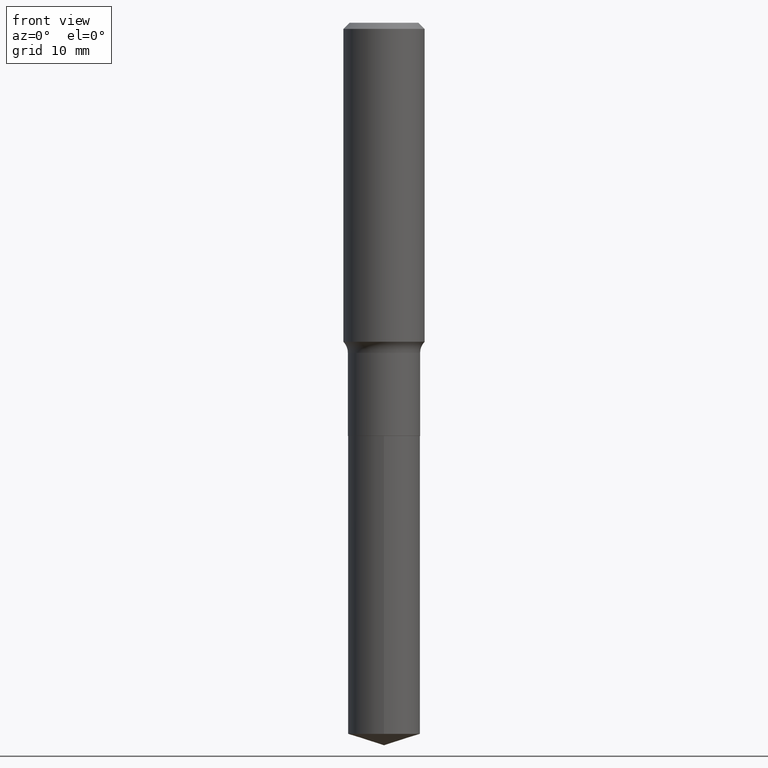
[diagram: clean part render]
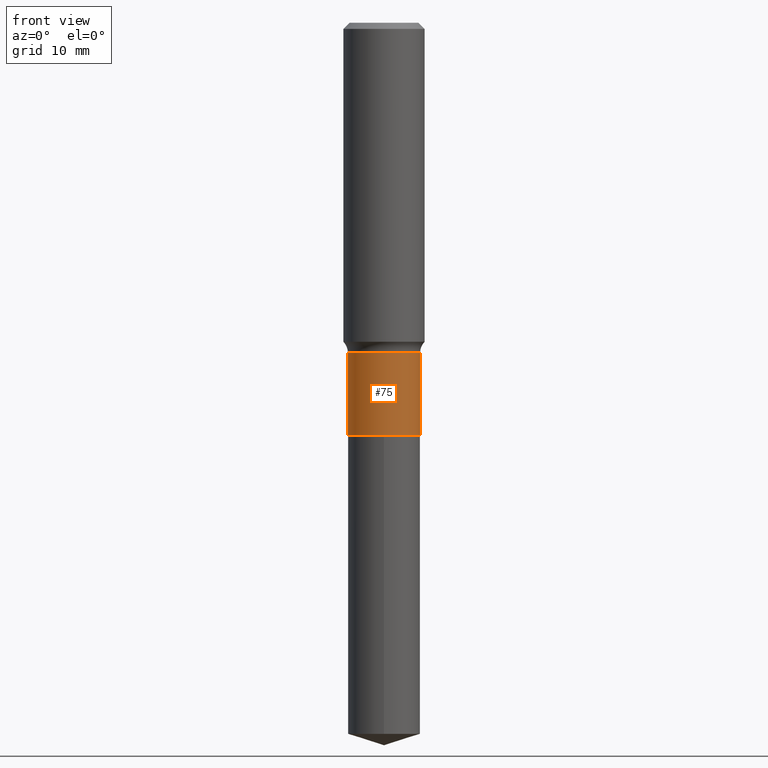
[diagram: same view with one face highlighted and labeled with its STEP entity id]
A machine part, front view. The second image highlights one B-rep face of the part: STEP entity #75.
In plain terms, the highlighted cylindrical surface (edge-blend (fillet) strip) has radius 4.4501 mm, axis along (-0, 0, 1).
Its self-contained STEP definition (entity closure, byte-faithful):
#8 = EDGE_CURVE ( 'NONE', #321, #196, #37, .T. ) ;
#15 = ORIENTED_EDGE ( 'NONE', *, *, #357, .F. ) ;
#33 = DIRECTION ( 'NONE',  ( -2.445468806185136597E-29, 3.491481338843145583E-15, 1.000000000000000000 ) ) ;
#37 = LINE ( 'NONE', #385, #266 ) ;
#50 = ORIENTED_EDGE ( 'NONE', *, *, #8, .T. ) ;
#51 = VERTEX_POINT ( 'NONE', #237 ) ;
#75 = ADVANCED_FACE ( 'NONE', ( #424 ), #156, .T. ) ;
#89 = ORIENTED_EDGE ( 'NONE', *, *, #314, .F. ) ;
#91 = DIRECTION ( 'NONE',  ( 1.000000000000000000, -6.982962677686266711E-15, 4.876176775795935793E-29 ) ) ;
#95 = CARTESIAN_POINT ( 'NONE',  ( 0.1751999999999999946, -8.218248775368990478E-15, -2.003399999999999626 ) ) ;
#104 = CIRCLE ( 'NONE', #386, 0.1751999999999999391 ) ;
#113 = CARTESIAN_POINT ( 'NONE',  ( 3.914951011821784364E-29, -5.589512475353991008E-15, -1.600899999999999768 ) ) ;
#118 = VERTEX_POINT ( 'NONE', #241 ) ;
#124 = AXIS2_PLACEMENT_3D ( 'NONE', #462, #475, #91 ) ;
#130 = CARTESIAN_POINT ( 'NONE',  ( 4.899252206311301777E-29, -6.994833714238356601E-15, -2.003399999999999626 ) ) ;
#156 = CYLINDRICAL_SURFACE ( 'NONE', #124, 0.1751999999999999391 ) ;
#163 = CARTESIAN_POINT ( 'NONE',  ( -0.1751999999999999391, 1.244870873051695093E-15, -8.617974278126592972E-30 ) ) ;
#196 = VERTEX_POINT ( 'NONE', #401 ) ;
#213 = LINE ( 'NONE', #163, #488 ) ;
#216 = EDGE_CURVE ( 'NONE', #118, #321, #463, .T. ) ;
#234 = DIRECTION ( 'NONE',  ( -2.445468806185136877E-29, 3.491481338843145188E-15, 1.000000000000000000 ) ) ;
#237 = CARTESIAN_POINT ( 'NONE',  ( -0.1751999999999999391, -5.047302221744479303E-15, -1.600899999999999768 ) ) ;
#241 = CARTESIAN_POINT ( 'NONE',  ( -0.1751999999999999946, -5.047302221744479303E-15, -2.003399999999999626 ) ) ;
#260 = AXIS2_PLACEMENT_3D ( 'NONE', #130, #333, #286 ) ;
#266 = VECTOR ( 'NONE', #234, 39.37007874015748143 ) ;
#269 = EDGE_LOOP ( 'NONE', ( #89, #322, #50, #15 ) ) ;
#286 = DIRECTION ( 'NONE',  ( 1.000000000000000000, -6.982962677686269077E-15, 0.000000000000000000 ) ) ;
#314 = EDGE_CURVE ( 'NONE', #118, #51, #213, .T. ) ;
#321 = VERTEX_POINT ( 'NONE', #95 ) ;
#322 = ORIENTED_EDGE ( 'NONE', *, *, #216, .T. ) ;
#326 = DIRECTION ( 'NONE',  ( -2.445468806185136877E-29, 3.491481338843145188E-15, 1.000000000000000000 ) ) ;
#333 = DIRECTION ( 'NONE',  ( -2.445468806185136597E-29, 3.491481338843145583E-15, 1.000000000000000000 ) ) ;
#357 = EDGE_CURVE ( 'NONE', #51, #196, #104, .T. ) ;
#377 = DIRECTION ( 'NONE',  ( 1.000000000000000000, -6.982962677686265133E-15, 0.000000000000000000 ) ) ;
#385 = CARTESIAN_POINT ( 'NONE',  ( 0.1751999999999999391, -1.223415061130633483E-15, 8.543061711194476516E-30 ) ) ;
#386 = AXIS2_PLACEMENT_3D ( 'NONE', #113, #33, #377 ) ;
#401 = CARTESIAN_POINT ( 'NONE',  ( 0.1751999999999999391, -6.812927536484624885E-15, -1.600899999999999768 ) ) ;
#424 = FACE_OUTER_BOUND ( 'NONE', #269, .T. ) ;
#462 = CARTESIAN_POINT ( 'NONE',  ( 0.000000000000000000, 0.000000000000000000, 0.000000000000000000 ) ) ;
#463 = CIRCLE ( 'NONE', #260, 0.1751999999999999946 ) ;
#475 = DIRECTION ( 'NONE',  ( -2.445468806185136597E-29, 3.491481338843145583E-15, 1.000000000000000000 ) ) ;
#488 = VECTOR ( 'NONE', #326, 39.37007874015748143 ) ;